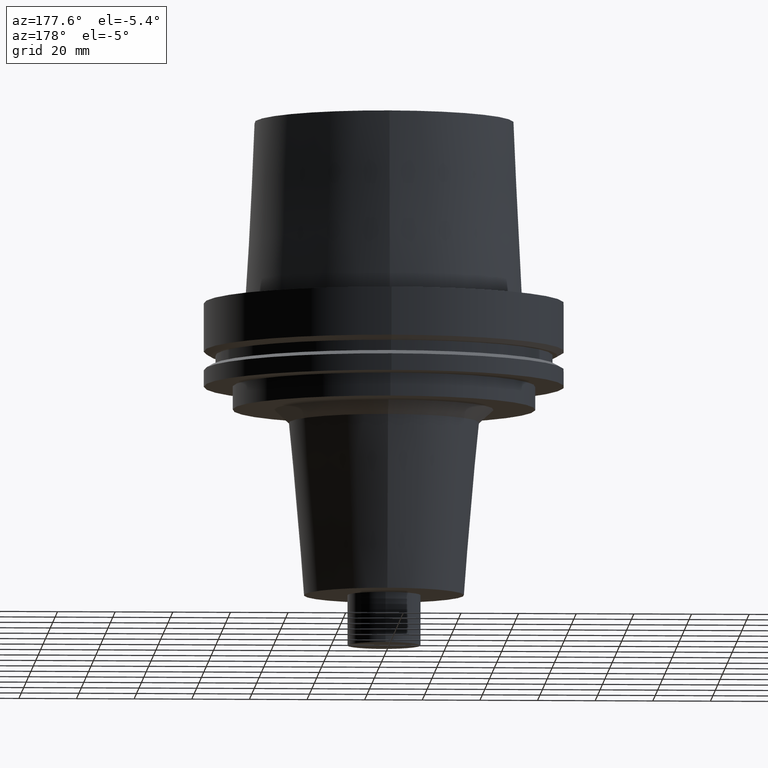
[diagram: clean part render]
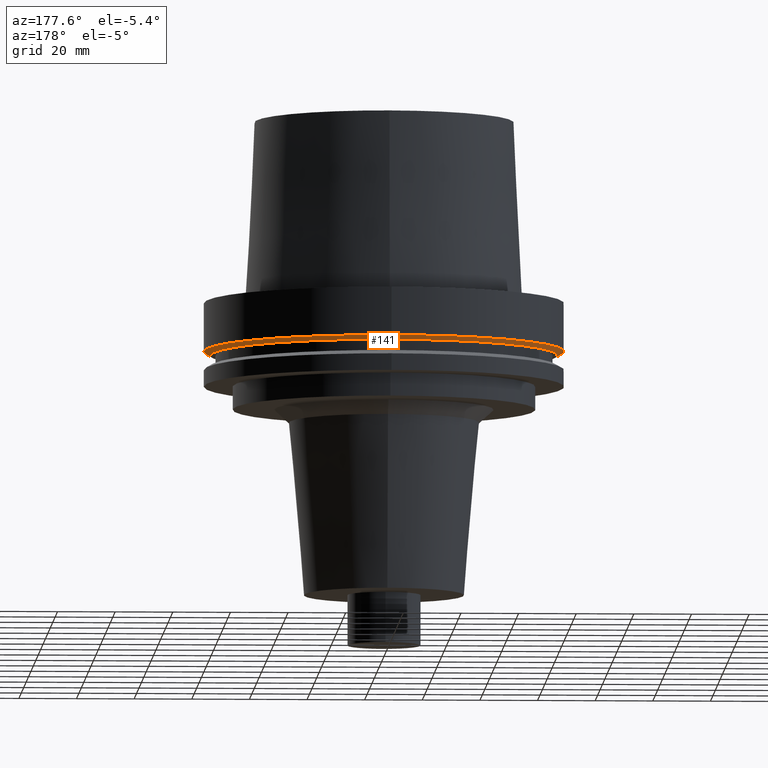
[diagram: same view with one face highlighted and labeled with its STEP entity id]
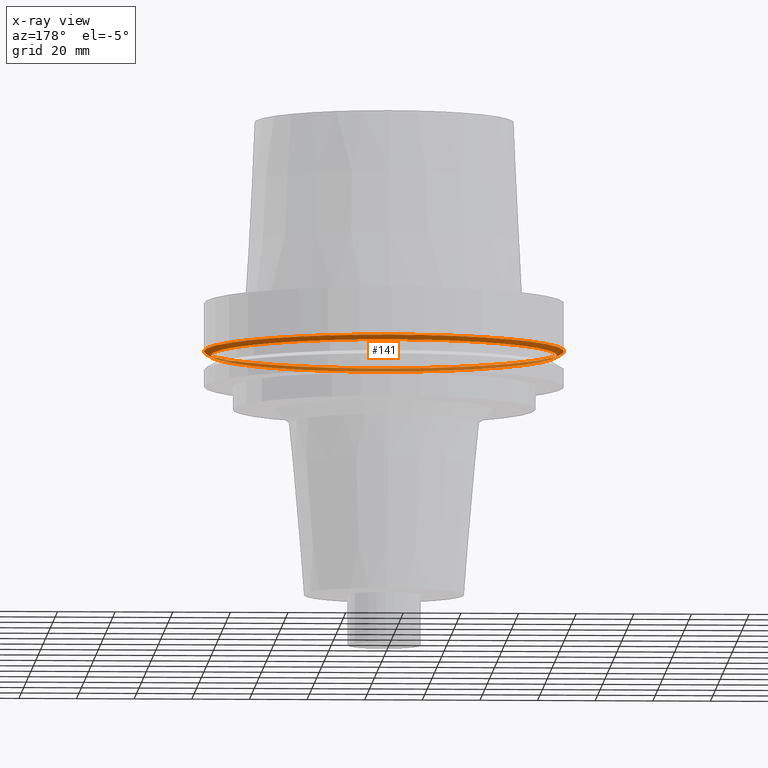
[diagram: x-ray of the same camera — body ghosted, the highlighted face saturated]
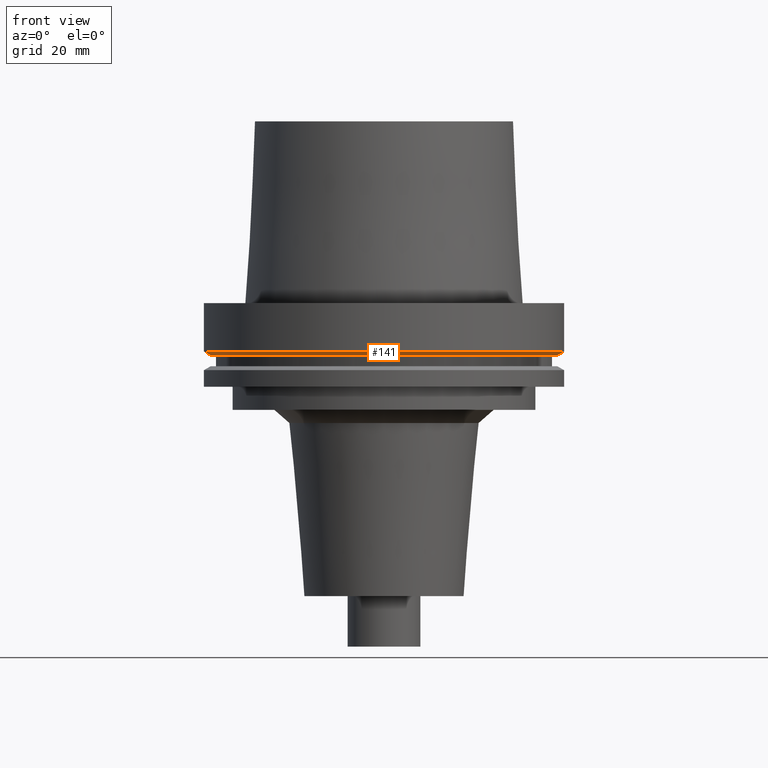
[diagram: same view with one face highlighted and labeled with its STEP entity id]
A machine part, auxiliary view. The second image highlights one B-rep face of the part: STEP entity #141.
The next image is the same camera in x-ray: the body ghosted, the highlighted face saturated — about 37% of this face is hidden behind the body in this view.
A second angle (front view) of the same face is appended — the face is thin or edge-on in the first view.
In plain terms, the highlighted conical surface has half-angle 60 deg.
Its self-contained STEP definition (entity closure, byte-faithful):
#103=EDGE_CURVE('Unnamed[1]',#235,#235,#236,.T.);
#120=EDGE_CURVE('Unnamed[1]',#261,#261,#262,.T.);
#141=ADVANCED_FACE('Unnamed[1]',(#292,#293),#294,.T.);
#235=VERTEX_POINT('',#402);
#236=CIRCLE('',#403,62.5);
#261=VERTEX_POINT('',#434);
#262=CIRCLE('',#435,60.1225952641912);
#292=FACE_BOUND('',#472,.T.);
#293=FACE_BOUND('',#473,.T.);
#294=CONICAL_SURFACE('',#474,61.3112976320956,1.04719755119668);
#402=CARTESIAN_POINT('',(1.02578894188644E-015,62.5,-16.7524047358084));
#403=AXIS2_PLACEMENT_3D('',#567,#568,#569);
#434=CARTESIAN_POINT('',(1.10983616172729E-015,60.1225952641912,-18.1250000000001));
#435=AXIS2_PLACEMENT_3D('',#598,#599,#600);
#472=EDGE_LOOP('',(#630));
#473=EDGE_LOOP('',(#631));
#474=AXIS2_PLACEMENT_3D('',#632,#633,#634);
#567=CARTESIAN_POINT('',(1.02578894188644E-015,2.05157788377287E-015,-16.7524047358084));
#568=DIRECTION('',(6.12323399573676E-017,1.22464679914735E-016,-1.0));
#569=DIRECTION('',(-1.23259516440783E-032,1.0,1.22464679914735E-016));
#598=CARTESIAN_POINT('',(1.10983616172729E-015,2.21967232345459E-015,-18.1250000000001));
#599=DIRECTION('',(6.12323399573677E-017,1.22464679914735E-016,-1.0));
#600=DIRECTION('',(-1.23259516440783E-032,1.0,1.22464679914735E-016));
#630=ORIENTED_EDGE('',*,*,#120,.F.);
#631=ORIENTED_EDGE('',*,*,#103,.T.);
#632=CARTESIAN_POINT('',(1.06781255180686E-015,2.13562510361373E-015,-17.4387023679042));
#633=DIRECTION('',(-6.12323399573676E-017,-1.22464679914735E-016,1.0));
#634=DIRECTION('',(-1.23259516440783E-032,1.0,1.22464679914735E-016));